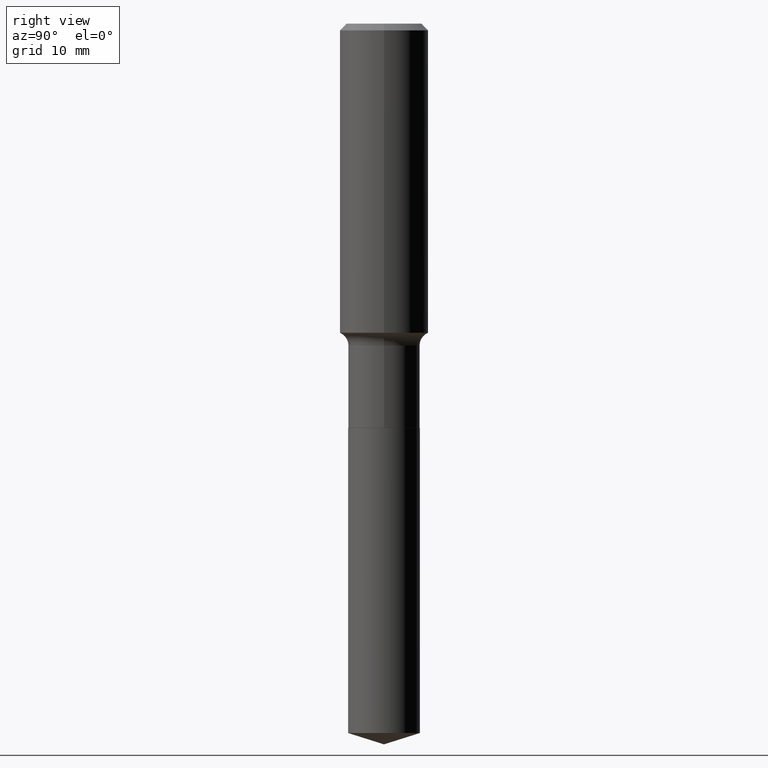
[diagram: clean part render]
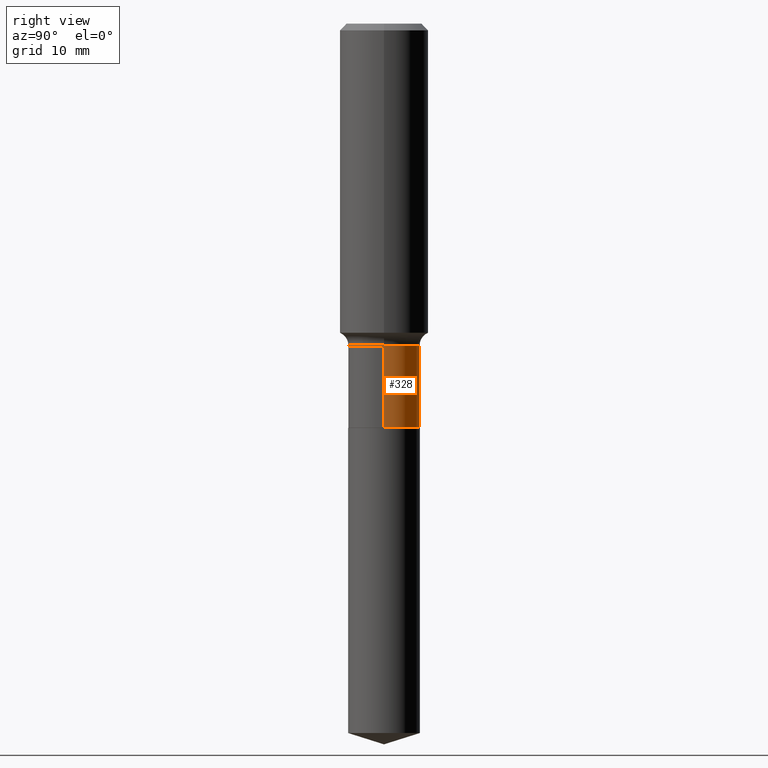
[diagram: same view with one face highlighted and labeled with its STEP entity id]
A machine part, right view. The second image highlights one B-rep face of the part: STEP entity #328.
In plain terms, the highlighted cylindrical surface (edge-blend (fillet) strip) has radius 5.1308 mm, axis along (-0, 0, 1).
Its self-contained STEP definition (entity closure, byte-faithful):
#1 = DIRECTION ( 'NONE',  ( -2.445468806185136877E-29, 3.491481338843145188E-15, 1.000000000000000000 ) ) ;
#31 = DIRECTION ( 'NONE',  ( 1.000000000000000000, -6.982962677686267499E-15, 4.876176775795936353E-29 ) ) ;
#40 = EDGE_CURVE ( 'NONE', #324, #212, #45, .T. ) ;
#42 = LINE ( 'NONE', #98, #415 ) ;
#43 = EDGE_CURVE ( 'NONE', #324, #372, #386, .T. ) ;
#45 = CIRCLE ( 'NONE', #354, 0.2020000000000000129 ) ;
#62 = CARTESIAN_POINT ( 'NONE',  ( 0.000000000000000000, 0.000000000000000000, 0.000000000000000000 ) ) ;
#87 = VECTOR ( 'NONE', #306, 39.37007874015748143 ) ;
#98 = CARTESIAN_POINT ( 'NONE',  ( -0.2019999999999999851, 1.435296326235402270E-15, -9.936248882314910004E-30 ) ) ;
#118 = EDGE_CURVE ( 'NONE', #212, #378, #42, .T. ) ;
#131 = ORIENTED_EDGE ( 'NONE', *, *, #40, .T. ) ;
#144 = AXIS2_PLACEMENT_3D ( 'NONE', #238, #432, #206 ) ;
#169 = CYLINDRICAL_SURFACE ( 'NONE', #283, 0.2019999999999999851 ) ;
#171 = ORIENTED_EDGE ( 'NONE', *, *, #43, .F. ) ;
#206 = DIRECTION ( 'NONE',  ( 1.000000000000000000, -6.982962677686266711E-15, 0.000000000000000000 ) ) ;
#212 = VERTEX_POINT ( 'NONE', #461 ) ;
#219 = CARTESIAN_POINT ( 'NONE',  ( -0.2019999999999999574, -5.709845659640153480E-15, -1.814400000000000235 ) ) ;
#222 = EDGE_CURVE ( 'NONE', #372, #378, #365, .T. ) ;
#238 = CARTESIAN_POINT ( 'NONE',  ( 4.437058601942312503E-29, -6.334943741197003797E-15, -1.814400000000000235 ) ) ;
#264 = DIRECTION ( 'NONE',  ( 1.000000000000000000, -6.982962677686265133E-15, 0.000000000000000000 ) ) ;
#283 = AXIS2_PLACEMENT_3D ( 'NONE', #62, #399, #31 ) ;
#296 = CARTESIAN_POINT ( 'NONE',  ( 0.2019999999999999574, -7.745502202089629956E-15, -1.814400000000000235 ) ) ;
#306 = DIRECTION ( 'NONE',  ( -2.445468806185136877E-29, 3.491481338843145188E-15, 1.000000000000000000 ) ) ;
#324 = VERTEX_POINT ( 'NONE', #445 ) ;
#328 = ADVANCED_FACE ( 'NONE', ( #434 ), #169, .T. ) ;
#354 = AXIS2_PLACEMENT_3D ( 'NONE', #413, #451, #264 ) ;
#365 = CIRCLE ( 'NONE', #144, 0.2019999999999999574 ) ;
#372 = VERTEX_POINT ( 'NONE', #296 ) ;
#378 = VERTEX_POINT ( 'NONE', #219 ) ;
#386 = LINE ( 'NONE', #459, #87 ) ;
#395 = ORIENTED_EDGE ( 'NONE', *, *, #118, .T. ) ;
#399 = DIRECTION ( 'NONE',  ( -2.445468806185136597E-29, 3.491481338843145583E-15, 1.000000000000000000 ) ) ;
#413 = CARTESIAN_POINT ( 'NONE',  ( 5.572000674892834695E-29, -7.955340230554108096E-15, -2.278500000000000192 ) ) ;
#415 = VECTOR ( 'NONE', #1, 39.37007874015748143 ) ;
#432 = DIRECTION ( 'NONE',  ( -2.445468806185136597E-29, 3.491481338843145583E-15, 1.000000000000000000 ) ) ;
#434 = FACE_OUTER_BOUND ( 'NONE', #489, .T. ) ;
#445 = CARTESIAN_POINT ( 'NONE',  ( 0.2020000000000000129, -9.365898691446733467E-15, -2.278500000000000192 ) ) ;
#451 = DIRECTION ( 'NONE',  ( -2.445468806185136597E-29, 3.491481338843145583E-15, 1.000000000000000000 ) ) ;
#459 = CARTESIAN_POINT ( 'NONE',  ( 0.2019999999999999851, -1.410558460892625962E-15, 9.849877087107791198E-30 ) ) ;
#461 = CARTESIAN_POINT ( 'NONE',  ( -0.2020000000000000129, -5.709845659640153480E-15, -2.278500000000000192 ) ) ;
#478 = ORIENTED_EDGE ( 'NONE', *, *, #222, .F. ) ;
#489 = EDGE_LOOP ( 'NONE', ( #131, #395, #478, #171 ) ) ;